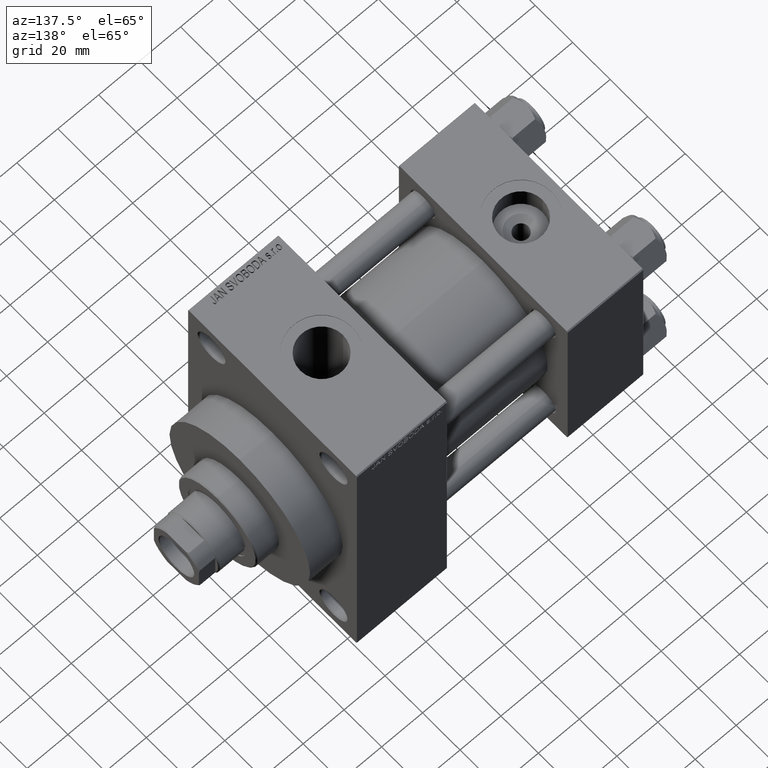
[diagram: clean part render]
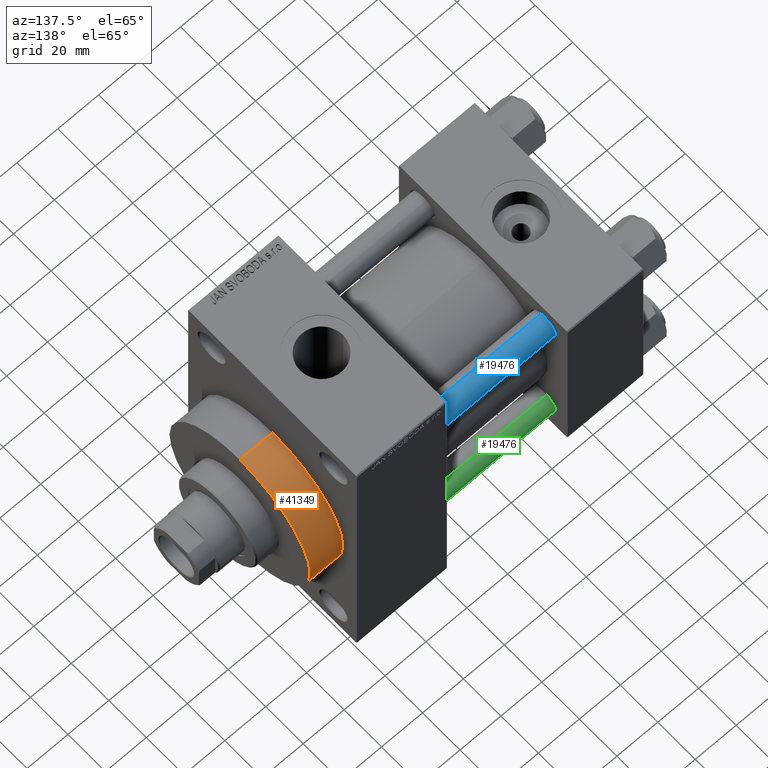
[diagram: same view with three faces highlighted in distinct colors, each labeled with its STEP entity id]
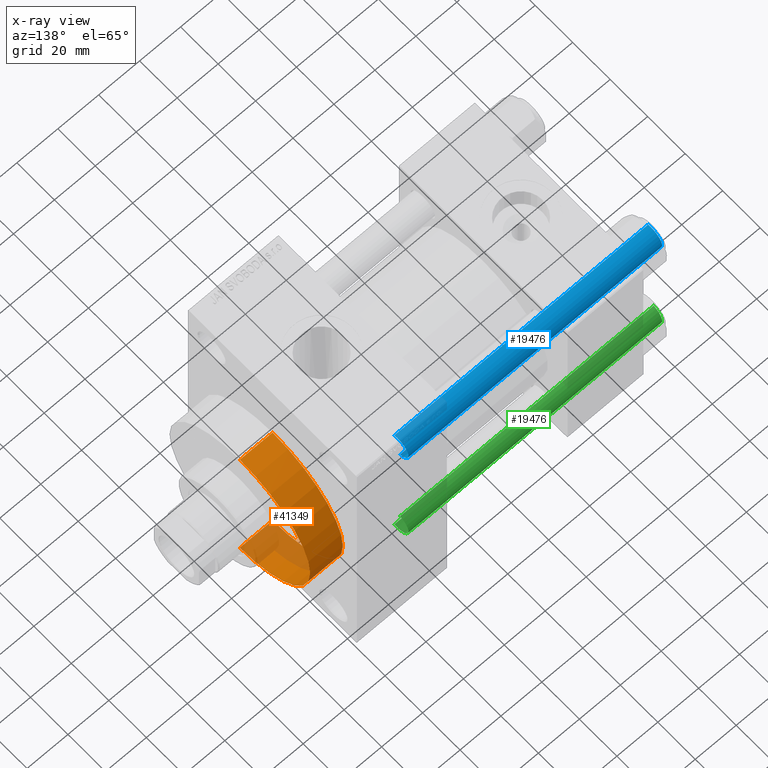
[diagram: x-ray of the same camera — body ghosted, the three highlighted faces saturated]
A machine part, auxiliary view with three faces highlighted in distinct colors.
The next image is the same camera in x-ray (body ghosted, the three faces saturated) — at least one of them is partly hidden behind the body in this view.
Their STEP definitions:

[orange] entity #41349 — the highlighted cylindrical surface (partial cylindrical patch) has radius 37.5 mm, axis along (-1, -0, -0).
#2008 = ORIENTED_EDGE ( 'NONE', *, *, #38428, .T. ) ;
#3055 = ORIENTED_EDGE ( 'NONE', *, *, #6835, .F. ) ;
#3761 = VERTEX_POINT ( 'NONE', #22138 ) ;
#4578 = DIRECTION ( 'NONE',  ( 0.000000000000000000, 0.000000000000000000, 1.000000000000000000 ) ) ;
#4970 = LINE ( 'NONE', #33129, #32185 ) ;
#6522 = LINE ( 'NONE', #31321, #34380 ) ;
#6835 = EDGE_CURVE ( 'NONE', #3761, #42024, #4970, .T. ) ;
#7543 = CARTESIAN_POINT ( 'NONE',  ( 156.0000000000000284, 4.592425496802575156E-15, -37.50000000000000711 ) ) ;
#12236 = CARTESIAN_POINT ( 'NONE',  ( 156.0000000000000284, 0.000000000000000000, 0.000000000000000000 ) ) ;
#13668 = AXIS2_PLACEMENT_3D ( 'NONE', #36985, #45116, #26504 ) ;
#18907 = FACE_OUTER_BOUND ( 'NONE', #21056, .T. ) ;
#19532 = DIRECTION ( 'NONE',  ( -1.000000000000000000, -0.000000000000000000, -0.000000000000000000 ) ) ;
#20378 = VERTEX_POINT ( 'NONE', #46862 ) ;
#21056 = EDGE_LOOP ( 'NONE', ( #32323, #2008, #38519, #3055 ) ) ;
#22138 = CARTESIAN_POINT ( 'NONE',  ( 156.0000000000000284, 0.000000000000000000, 37.50000000000000711 ) ) ;
#22891 = CIRCLE ( 'NONE', #45751, 37.50000000000000711 ) ;
#26504 = DIRECTION ( 'NONE',  ( 0.000000000000000000, 0.000000000000000000, -1.000000000000000000 ) ) ;
#26767 = AXIS2_PLACEMENT_3D ( 'NONE', #30586, #44437, #4578 ) ;
#29412 = EDGE_CURVE ( 'NONE', #20378, #42024, #44146, .T. ) ;
#30586 = CARTESIAN_POINT ( 'NONE',  ( 156.0000000000000284, 0.000000000000000000, 0.000000000000000000 ) ) ;
#31321 = CARTESIAN_POINT ( 'NONE',  ( 156.0000000000000284, 4.592425496802575156E-15, -37.50000000000000711 ) ) ;
#31516 = EDGE_CURVE ( 'NONE', #32094, #3761, #22891, .T. ) ;
#32094 = VERTEX_POINT ( 'NONE', #7543 ) ;
#32185 = VECTOR ( 'NONE', #19532, 1000.000000000000000 ) ;
#32323 = ORIENTED_EDGE ( 'NONE', *, *, #31516, .F. ) ;
#33129 = CARTESIAN_POINT ( 'NONE',  ( 156.0000000000000284, 0.000000000000000000, 37.50000000000000711 ) ) ;
#33231 = DIRECTION ( 'NONE',  ( 0.000000000000000000, 0.000000000000000000, -1.000000000000000000 ) ) ;
#34380 = VECTOR ( 'NONE', #46602, 1000.000000000000000 ) ;
#36985 = CARTESIAN_POINT ( 'NONE',  ( 140.0000000000000000, 0.000000000000000000, 0.000000000000000000 ) ) ;
#37982 = CYLINDRICAL_SURFACE ( 'NONE', #26767, 37.50000000000000711 ) ;
#38428 = EDGE_CURVE ( 'NONE', #32094, #20378, #6522, .T. ) ;
#38519 = ORIENTED_EDGE ( 'NONE', *, *, #29412, .T. ) ;
#40644 = DIRECTION ( 'NONE',  ( 1.000000000000000000, 0.000000000000000000, 0.000000000000000000 ) ) ;
#41349 = ADVANCED_FACE ( 'NONE', ( #18907 ), #37982, .T. ) ;
#41931 = CARTESIAN_POINT ( 'NONE',  ( 140.0000000000000000, 0.000000000000000000, 37.50000000000000711 ) ) ;
#42024 = VERTEX_POINT ( 'NONE', #41931 ) ;
#44146 = CIRCLE ( 'NONE', #13668, 37.50000000000000711 ) ;
#44437 = DIRECTION ( 'NONE',  ( -1.000000000000000000, -0.000000000000000000, -0.000000000000000000 ) ) ;
#45116 = DIRECTION ( 'NONE',  ( 1.000000000000000000, 0.000000000000000000, 0.000000000000000000 ) ) ;
#45751 = AXIS2_PLACEMENT_3D ( 'NONE', #12236, #40644, #33231 ) ;
#46602 = DIRECTION ( 'NONE',  ( -1.000000000000000000, -0.000000000000000000, -0.000000000000000000 ) ) ;
#46862 = CARTESIAN_POINT ( 'NONE',  ( 140.0000000000000000, 4.592425496802575156E-15, -37.50000000000000711 ) ) ;

[blue] entity #19476 — the highlighted cylindrical surface (edge-blend (fillet) strip) has radius 6 mm, axis along (-1, -0, 0).
#644 = EDGE_CURVE ( 'NONE', #3912, #6291, #22071, .T. ) ;
#3430 = CARTESIAN_POINT ( 'NONE',  ( 6.000000000000000888, 7.347880794884120722E-16, 0.4999999999999865663 ) ) ;
#3912 = VERTEX_POINT ( 'NONE', #3430 ) ;
#4065 = CARTESIAN_POINT ( 'NONE',  ( -6.000000000000000888, 0.000000000000000000, 125.0000000000000000 ) ) ;
#4221 = CARTESIAN_POINT ( 'NONE',  ( 0.000000000000000000, 0.000000000000000000, 124.5000000000000000 ) ) ;
#5711 = CARTESIAN_POINT ( 'NONE',  ( 0.000000000000000000, 0.000000000000000000, 125.0000000000000000 ) ) ;
#6291 = VERTEX_POINT ( 'NONE', #38492 ) ;
#6728 = VERTEX_POINT ( 'NONE', #7845 ) ;
#7845 = CARTESIAN_POINT ( 'NONE',  ( 6.000000000000000888, 7.347880794884120722E-16, 124.5000000000000000 ) ) ;
#7868 = DIRECTION ( 'NONE',  ( -0.000000000000000000, -0.000000000000000000, -1.000000000000000000 ) ) ;
#8583 = DIRECTION ( 'NONE',  ( -0.000000000000000000, -0.000000000000000000, -1.000000000000000000 ) ) ;
#11976 = CARTESIAN_POINT ( 'NONE',  ( 0.000000000000000000, 0.000000000000000000, 0.4999999999999865663 ) ) ;
#12498 = CARTESIAN_POINT ( 'NONE',  ( 6.000000000000000888, 7.347880794884120722E-16, 125.0000000000000000 ) ) ;
#12631 = FACE_OUTER_BOUND ( 'NONE', #33005, .T. ) ;
#12862 = CYLINDRICAL_SURFACE ( 'NONE', #31751, 6.000000000000000888 ) ;
#17067 = EDGE_CURVE ( 'NONE', #29664, #6728, #30143, .T. ) ;
#18782 = DIRECTION ( 'NONE',  ( 1.000000000000000000, 0.000000000000000000, 0.000000000000000000 ) ) ;
#19476 = ADVANCED_FACE ( 'NONE', ( #12631 ), #12862, .T. ) ;
#19652 = LINE ( 'NONE', #12498, #25734 ) ;
#22071 = CIRCLE ( 'NONE', #25881, 6.000000000000000888 ) ;
#23477 = ORIENTED_EDGE ( 'NONE', *, *, #644, .T. ) ;
#23613 = EDGE_CURVE ( 'NONE', #29664, #6291, #44841, .T. ) ;
#25053 = EDGE_CURVE ( 'NONE', #6728, #3912, #19652, .T. ) ;
#25734 = VECTOR ( 'NONE', #37045, 1000.000000000000000 ) ;
#25881 = AXIS2_PLACEMENT_3D ( 'NONE', #11976, #34619, #37247 ) ;
#27413 = ORIENTED_EDGE ( 'NONE', *, *, #17067, .T. ) ;
#27419 = DIRECTION ( 'NONE',  ( -1.000000000000000000, 0.000000000000000000, 0.000000000000000000 ) ) ;
#29664 = VERTEX_POINT ( 'NONE', #37653 ) ;
#30143 = CIRCLE ( 'NONE', #32428, 6.000000000000000888 ) ;
#31751 = AXIS2_PLACEMENT_3D ( 'NONE', #5711, #8583, #27419 ) ;
#31782 = VECTOR ( 'NONE', #7868, 1000.000000000000000 ) ;
#32428 = AXIS2_PLACEMENT_3D ( 'NONE', #4221, #37115, #18782 ) ;
#33005 = EDGE_LOOP ( 'NONE', ( #27413, #37572, #23477, #42287 ) ) ;
#34619 = DIRECTION ( 'NONE',  ( -0.000000000000000000, -0.000000000000000000, 1.000000000000000000 ) ) ;
#37045 = DIRECTION ( 'NONE',  ( -0.000000000000000000, -0.000000000000000000, -1.000000000000000000 ) ) ;
#37115 = DIRECTION ( 'NONE',  ( 0.000000000000000000, 0.000000000000000000, -1.000000000000000000 ) ) ;
#37247 = DIRECTION ( 'NONE',  ( 1.000000000000000000, 0.000000000000000000, 0.000000000000000000 ) ) ;
#37572 = ORIENTED_EDGE ( 'NONE', *, *, #25053, .T. ) ;
#37653 = CARTESIAN_POINT ( 'NONE',  ( -6.000000000000000888, 0.000000000000000000, 124.5000000000000000 ) ) ;
#38492 = CARTESIAN_POINT ( 'NONE',  ( -6.000000000000000888, 0.000000000000000000, 0.4999999999999865663 ) ) ;
#42287 = ORIENTED_EDGE ( 'NONE', *, *, #23613, .F. ) ;
#44841 = LINE ( 'NONE', #4065, #31782 ) ;

[green] entity #19476 — the highlighted cylindrical surface (edge-blend (fillet) strip) has radius 6 mm, axis along (1, -0, 0).
#644 = EDGE_CURVE ( 'NONE', #3912, #6291, #22071, .T. ) ;
#3430 = CARTESIAN_POINT ( 'NONE',  ( 6.000000000000000888, 7.347880794884120722E-16, 0.4999999999999865663 ) ) ;
#3912 = VERTEX_POINT ( 'NONE', #3430 ) ;
#4065 = CARTESIAN_POINT ( 'NONE',  ( -6.000000000000000888, 0.000000000000000000, 125.0000000000000000 ) ) ;
#4221 = CARTESIAN_POINT ( 'NONE',  ( 0.000000000000000000, 0.000000000000000000, 124.5000000000000000 ) ) ;
#5711 = CARTESIAN_POINT ( 'NONE',  ( 0.000000000000000000, 0.000000000000000000, 125.0000000000000000 ) ) ;
#6291 = VERTEX_POINT ( 'NONE', #38492 ) ;
#6728 = VERTEX_POINT ( 'NONE', #7845 ) ;
#7845 = CARTESIAN_POINT ( 'NONE',  ( 6.000000000000000888, 7.347880794884120722E-16, 124.5000000000000000 ) ) ;
#7868 = DIRECTION ( 'NONE',  ( -0.000000000000000000, -0.000000000000000000, -1.000000000000000000 ) ) ;
#8583 = DIRECTION ( 'NONE',  ( -0.000000000000000000, -0.000000000000000000, -1.000000000000000000 ) ) ;
#11976 = CARTESIAN_POINT ( 'NONE',  ( 0.000000000000000000, 0.000000000000000000, 0.4999999999999865663 ) ) ;
#12498 = CARTESIAN_POINT ( 'NONE',  ( 6.000000000000000888, 7.347880794884120722E-16, 125.0000000000000000 ) ) ;
#12631 = FACE_OUTER_BOUND ( 'NONE', #33005, .T. ) ;
#12862 = CYLINDRICAL_SURFACE ( 'NONE', #31751, 6.000000000000000888 ) ;
#17067 = EDGE_CURVE ( 'NONE', #29664, #6728, #30143, .T. ) ;
#18782 = DIRECTION ( 'NONE',  ( 1.000000000000000000, 0.000000000000000000, 0.000000000000000000 ) ) ;
#19476 = ADVANCED_FACE ( 'NONE', ( #12631 ), #12862, .T. ) ;
#19652 = LINE ( 'NONE', #12498, #25734 ) ;
#22071 = CIRCLE ( 'NONE', #25881, 6.000000000000000888 ) ;
#23477 = ORIENTED_EDGE ( 'NONE', *, *, #644, .T. ) ;
#23613 = EDGE_CURVE ( 'NONE', #29664, #6291, #44841, .T. ) ;
#25053 = EDGE_CURVE ( 'NONE', #6728, #3912, #19652, .T. ) ;
#25734 = VECTOR ( 'NONE', #37045, 1000.000000000000000 ) ;
#25881 = AXIS2_PLACEMENT_3D ( 'NONE', #11976, #34619, #37247 ) ;
#27413 = ORIENTED_EDGE ( 'NONE', *, *, #17067, .T. ) ;
#27419 = DIRECTION ( 'NONE',  ( -1.000000000000000000, 0.000000000000000000, 0.000000000000000000 ) ) ;
#29664 = VERTEX_POINT ( 'NONE', #37653 ) ;
#30143 = CIRCLE ( 'NONE', #32428, 6.000000000000000888 ) ;
#31751 = AXIS2_PLACEMENT_3D ( 'NONE', #5711, #8583, #27419 ) ;
#31782 = VECTOR ( 'NONE', #7868, 1000.000000000000000 ) ;
#32428 = AXIS2_PLACEMENT_3D ( 'NONE', #4221, #37115, #18782 ) ;
#33005 = EDGE_LOOP ( 'NONE', ( #27413, #37572, #23477, #42287 ) ) ;
#34619 = DIRECTION ( 'NONE',  ( -0.000000000000000000, -0.000000000000000000, 1.000000000000000000 ) ) ;
#37045 = DIRECTION ( 'NONE',  ( -0.000000000000000000, -0.000000000000000000, -1.000000000000000000 ) ) ;
#37115 = DIRECTION ( 'NONE',  ( 0.000000000000000000, 0.000000000000000000, -1.000000000000000000 ) ) ;
#37247 = DIRECTION ( 'NONE',  ( 1.000000000000000000, 0.000000000000000000, 0.000000000000000000 ) ) ;
#37572 = ORIENTED_EDGE ( 'NONE', *, *, #25053, .T. ) ;
#37653 = CARTESIAN_POINT ( 'NONE',  ( -6.000000000000000888, 0.000000000000000000, 124.5000000000000000 ) ) ;
#38492 = CARTESIAN_POINT ( 'NONE',  ( -6.000000000000000888, 0.000000000000000000, 0.4999999999999865663 ) ) ;
#42287 = ORIENTED_EDGE ( 'NONE', *, *, #23613, .F. ) ;
#44841 = LINE ( 'NONE', #4065, #31782 ) ;